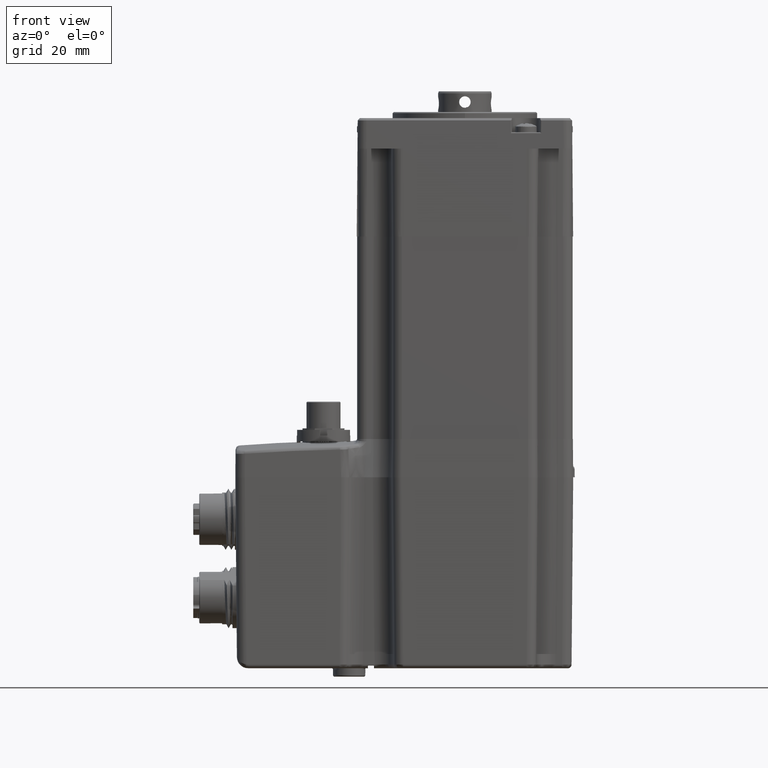
[diagram: clean part render]
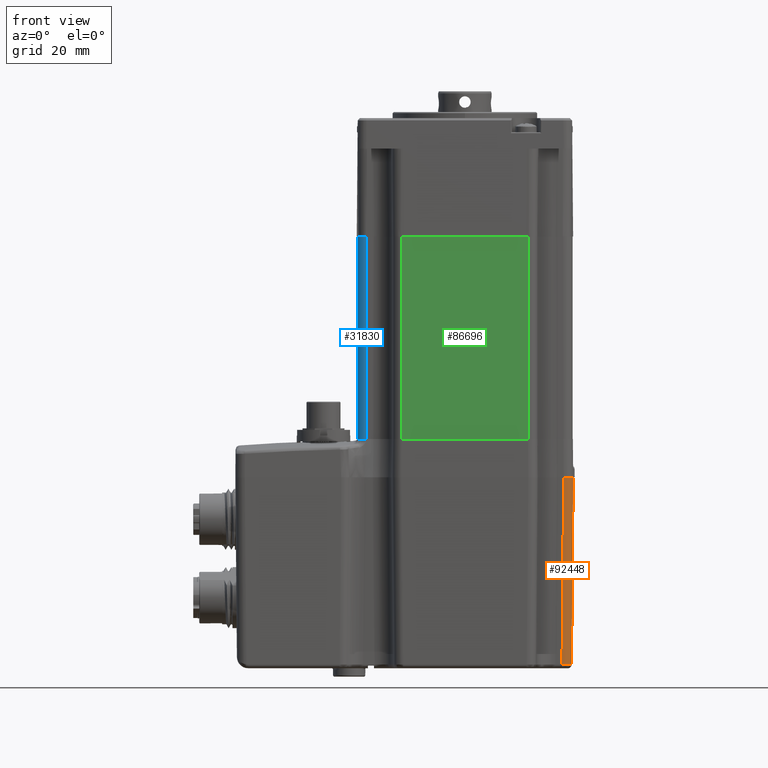
[diagram: same view with three faces highlighted in distinct colors, each labeled with its STEP entity id]
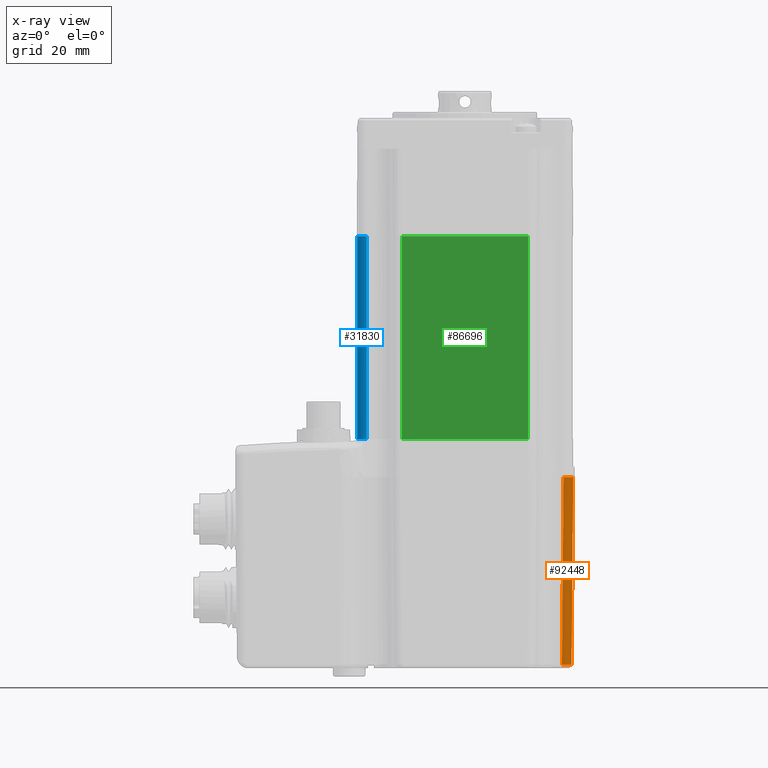
[diagram: x-ray of the same camera — body ghosted, the three highlighted faces saturated]
A machine part, front view with three faces highlighted in distinct colors.
The next image is the same camera in x-ray (body ghosted, the three faces saturated) — at least one of them is partly hidden behind the body in this view.
Their STEP definitions:

[orange] entity #92448 — the highlighted cylindrical surface (edge-blend (fillet) strip) has radius 2.5 mm, axis along (0.0087, -0.0087, 0.9999).
#407 = CARTESIAN_POINT ( 'NONE',  ( 25.40967119317840073, -18.65957600083883960, -102.0087265355430759 ) ) ;
#1239 = DIRECTION ( 'NONE',  ( 0.008726203243944236423, -0.008726203243944232954, 0.9999238504775704861 ) ) ;
#1584 = CARTESIAN_POINT ( 'NONE',  ( 28.33726867790758064, -16.58736387024715953, -53.00000000004468603 ) ) ;
#2067 = CARTESIAN_POINT ( 'NONE',  ( 27.17735084223524211, -17.92735084223524922, -102.0123407150203008 ) ) ;
#2901 = CARTESIAN_POINT ( 'NONE',  ( 26.70226811554211821, -18.40243356892836601, -102.0123407150203008 ) ) ;
#9394 = AXIS2_PLACEMENT_3D ( 'NONE', #77598, #1239, #19583 ) ;
#11824 = CARTESIAN_POINT ( 'NONE',  ( 25.40967119317840073, -18.65957600083883960, -102.0087265355430759 ) ) ;
#17449 =( BOUNDED_CURVE ( )  B_SPLINE_CURVE ( 3, ( #59078, #78629, #106449, #76988 ),
 .UNSPECIFIED., .F., .F. ) 
 B_SPLINE_CURVE_WITH_KNOTS ( ( 4, 4 ),
 ( 0.0000000000000000000, 0.7853600871865068500 ),
 .UNSPECIFIED. ) 
 CURVE ( )  GEOMETRIC_REPRESENTATION_ITEM ( )  RATIONAL_B_SPLINE_CURVE ( ( 1.000000000000000000, 0.9492578786076025787, 0.9492578786076025787, 1.000000000000000000 ) ) 
 REPRESENTATION_ITEM ( '' )  );
#18654 = EDGE_CURVE ( 'NONE', #95434, #51060, #67727, .T. ) ;
#19583 = DIRECTION ( 'NONE',  ( 0.9999619230641713097, 0.0000000000000000000, -0.008726535498373986718 ) ) ;
#21337 =( BOUNDED_CURVE ( )  B_SPLINE_CURVE ( 3, ( #11824, #70745, #2901, #2067 ),
 .UNSPECIFIED., .F., .F. ) 
 B_SPLINE_CURVE_WITH_KNOTS ( ( 4, 4 ),
 ( 5.497825219993077717, 6.283185307179586232 ),
 .UNSPECIFIED. ) 
 CURVE ( )  GEOMETRIC_REPRESENTATION_ITEM ( )  RATIONAL_B_SPLINE_CURVE ( ( 1.000000000000000000, 0.9492578786076022457, 0.9492578786076022457, 1.000000000000000000 ) ) 
 REPRESENTATION_ITEM ( '' )  );
#22205 = VERTEX_POINT ( 'NONE', #40571 ) ;
#24432 =( BOUNDED_CURVE ( )  B_SPLINE_CURVE ( 3, ( #69863, #51099, #41686, #1584 ),
 .UNSPECIFIED., .F., .F. ) 
 B_SPLINE_CURVE_WITH_KNOTS ( ( 4, 4 ),
 ( 2.356232566403286377, 3.926952740776304740 ),
 .UNSPECIFIED. ) 
 CURVE ( )  GEOMETRIC_REPRESENTATION_ITEM ( )  RATIONAL_B_SPLINE_CURVE ( ( 1.000000000000000000, 0.8047558030806112317, 0.8047558030806112317, 1.000000000000000000 ) ) 
 REPRESENTATION_ITEM ( '' )  );
#28418 = ORIENTED_EDGE ( 'NONE', *, *, #115299, .F. ) ;
#29793 = FACE_OUTER_BOUND ( 'NONE', #31847, .T. ) ;
#29981 = ORIENTED_EDGE ( 'NONE', *, *, #70837, .F. ) ;
#31847 = EDGE_LOOP ( 'NONE', ( #78620, #69877, #39814, #28418, #29981 ) ) ;
#35798 = CYLINDRICAL_SURFACE ( 'NONE', #9394, 2.500000000000000444 ) ;
#39814 = ORIENTED_EDGE ( 'NONE', *, *, #87401, .T. ) ;
#40010 = VERTEX_POINT ( 'NONE', #86533 ) ;
#40571 = CARTESIAN_POINT ( 'NONE',  ( 28.33726867790758064, -16.58736387024715953, -53.00000000004468603 ) ) ;
#41686 = CARTESIAN_POINT ( 'NONE',  ( 28.33726867790759130, -18.05179729719359827, -53.00000000000003553 ) ) ;
#51060 = VERTEX_POINT ( 'NONE', #87356 ) ;
#51099 = CARTESIAN_POINT ( 'NONE',  ( 27.30179729719359472, -19.08726867790758774, -53.00000000000003553 ) ) ;
#55691 = VERTEX_POINT ( 'NONE', #96313 ) ;
#59078 = CARTESIAN_POINT ( 'NONE',  ( 27.17735084223524211, -17.92735084223524922, -102.0123407150203008 ) ) ;
#66989 = CARTESIAN_POINT ( 'NONE',  ( 25.83755422955621128, -19.08745903721664661, -52.97818698377980695 ) ) ;
#67727 = LINE ( 'NONE', #66989, #87484 ) ;
#69863 = CARTESIAN_POINT ( 'NONE',  ( 25.83736387024715597, -19.08726867790758419, -53.00000000004469314 ) ) ;
#69877 = ORIENTED_EDGE ( 'NONE', *, *, #88518, .T. ) ;
#70745 = CARTESIAN_POINT ( 'NONE',  ( 26.08154474525004574, -18.65955553585465765, -102.0110715904551313 ) ) ;
#70837 = EDGE_CURVE ( 'NONE', #51060, #22205, #24432, .T. ) ;
#75773 = VECTOR ( 'NONE', #84130, 1000.000000000000114 ) ;
#76988 = CARTESIAN_POINT ( 'NONE',  ( 27.90957600083883960, -16.15967119317841494, -102.0087265355430759 ) ) ;
#77598 = CARTESIAN_POINT ( 'NONE',  ( 25.83755422955621128, -16.58755422955621839, -52.95637064503386426 ) ) ;
#78620 = ORIENTED_EDGE ( 'NONE', *, *, #18654, .F. ) ;
#78629 = CARTESIAN_POINT ( 'NONE',  ( 27.65243356892835536, -17.45226811554212532, -102.0123407150203008 ) ) ;
#83348 = LINE ( 'NONE', #114475, #75773 ) ;
#84130 = DIRECTION ( 'NONE',  ( -0.008726203243944238158, 0.008726203243944234689, -0.9999238504775704861 ) ) ;
#86533 = CARTESIAN_POINT ( 'NONE',  ( 27.90957600083883960, -16.15967119317841494, -102.0087265355430759 ) ) ;
#87356 = CARTESIAN_POINT ( 'NONE',  ( 25.83736387024715597, -19.08726867790758419, -53.00000000004469314 ) ) ;
#87401 = EDGE_CURVE ( 'NONE', #55691, #40010, #17449, .T. ) ;
#87484 = VECTOR ( 'NONE', #96409, 1000.000000000000114 ) ;
#88518 = EDGE_CURVE ( 'NONE', #95434, #55691, #21337, .T. ) ;
#92448 = ADVANCED_FACE ( 'NONE', ( #29793 ), #35798, .T. ) ;
#95434 = VERTEX_POINT ( 'NONE', #407 ) ;
#96313 = CARTESIAN_POINT ( 'NONE',  ( 27.17735084223524211, -17.92735084223524922, -102.0123407150203008 ) ) ;
#96409 = DIRECTION ( 'NONE',  ( 0.008726203243944236423, -0.008726203243944234689, 0.9999238504775704861 ) ) ;
#106449 = CARTESIAN_POINT ( 'NONE',  ( 27.90955553585464699, -16.83154474525005995, -102.0110715904551313 ) ) ;
#114475 = CARTESIAN_POINT ( 'NONE',  ( 28.33455217511031776, -16.58464736744990375, -53.31128038865480789 ) ) ;
#115299 = EDGE_CURVE ( 'NONE', #22205, #40010, #83348, .T. ) ;

[blue] entity #31830 — the highlighted cylindrical surface (edge-blend (fillet) strip) has radius 2.5 mm, axis along (0, 0, -1).
#980 = VECTOR ( 'NONE', #8201, 1000.000000000000000 ) ;
#1444 = EDGE_CURVE ( 'NONE', #94712, #4614, #26819, .T. ) ;
#1845 = EDGE_CURVE ( 'NONE', #4614, #16669, #8896, .T. ) ;
#2543 = CARTESIAN_POINT ( 'NONE',  ( -28.19999999999998863, -16.82724923474893686, -43.00000000000002132 ) ) ;
#4614 = VERTEX_POINT ( 'NONE', #78507 ) ;
#8201 = DIRECTION ( 'NONE',  ( 0.0000000000000000000, 0.0000000000000000000, -1.000000000000000000 ) ) ;
#8459 = DIRECTION ( 'NONE',  ( -1.000000000000000000, 0.0000000000000000000, 0.0000000000000000000 ) ) ;
#8896 = LINE ( 'NONE', #28648, #45566 ) ;
#11879 = CARTESIAN_POINT ( 'NONE',  ( -26.95904745092724042, -18.68446597088564687, -43.00000000000002132 ) ) ;
#16669 = VERTEX_POINT ( 'NONE', #68530 ) ;
#20671 = CARTESIAN_POINT ( 'NONE',  ( -28.19999999999998863, -16.50000000000000000, 9.999999999999973355 ) ) ;
#23730 = ORIENTED_EDGE ( 'NONE', *, *, #50278, .T. ) ;
#26819 = CIRCLE ( 'NONE', #36789, 2.500000000000002220 ) ;
#28648 = CARTESIAN_POINT ( 'NONE',  ( -25.69999999999998508, -19.00000000000000355, 9.999999999999973355 ) ) ;
#31556 = CARTESIAN_POINT ( 'NONE',  ( -28.19999999490953968, -16.47850279563876086, -42.99999999994842881 ) ) ;
#31754 = ORIENTED_EDGE ( 'NONE', *, *, #1444, .F. ) ;
#31830 = ADVANCED_FACE ( 'NONE', ( #54799 ), #86794, .T. ) ;
#31956 = CARTESIAN_POINT ( 'NONE',  ( -27.69916710599543919, -18.03636679993728720, -43.00000000000002132 ) ) ;
#32136 = CARTESIAN_POINT ( 'NONE',  ( -25.69999999999998508, -16.50000000000000000, 9.999999999999973355 ) ) ;
#36763 = VERTEX_POINT ( 'NONE', #31556 ) ;
#36789 = AXIS2_PLACEMENT_3D ( 'NONE', #32136, #62442, #90567 ) ;
#40500 = CARTESIAN_POINT ( 'NONE',  ( -27.88446597088562839, -17.75904745092724468, -43.00000000000001421 ) ) ;
#40972 = AXIS2_PLACEMENT_3D ( 'NONE', #63613, #74226, #8459 ) ;
#45566 = VECTOR ( 'NONE', #47826, 1000.000000000000000 ) ;
#47826 = DIRECTION ( 'NONE',  ( 0.0000000000000000000, 0.0000000000000000000, -1.000000000000000000 ) ) ;
#50278 = EDGE_CURVE ( 'NONE', #94712, #36763, #95618, .T. ) ;
#54799 = FACE_OUTER_BOUND ( 'NONE', #91366, .T. ) ;
#57361 = ORIENTED_EDGE ( 'NONE', *, *, #86655, .T. ) ;
#60984 = CARTESIAN_POINT ( 'NONE',  ( -26.35436971089818670, -18.93493169167079060, -43.00000000000002842 ) ) ;
#62442 = DIRECTION ( 'NONE',  ( 0.0000000000000000000, 0.0000000000000000000, 1.000000000000000000 ) ) ;
#63613 = CARTESIAN_POINT ( 'NONE',  ( -25.69999999999998508, -16.50000000000000000, 9.999999999999973355 ) ) ;
#68530 = CARTESIAN_POINT ( 'NONE',  ( -25.70000000000001350, -19.00000000000000355, -42.99999999999962341 ) ) ;
#70796 = CARTESIAN_POINT ( 'NONE',  ( -28.13493169167078278, -17.15436971089820517, -43.00000000000002842 ) ) ;
#74226 = DIRECTION ( 'NONE',  ( 0.0000000000000000000, 0.0000000000000000000, -1.000000000000000000 ) ) ;
#78507 = CARTESIAN_POINT ( 'NONE',  ( -25.69994558065858214, -18.99892608207358435, 9.999999999999971578 ) ) ;
#86655 = EDGE_CURVE ( 'NONE', #36763, #16669, #98674, .T. ) ;
#86794 = CYLINDRICAL_SURFACE ( 'NONE', #40972, 2.500000000000002220 ) ;
#89939 = CARTESIAN_POINT ( 'NONE',  ( -25.70000000000001350, -19.00000000000000355, -42.99999999999962341 ) ) ;
#90567 = DIRECTION ( 'NONE',  ( -1.000000000000000000, 0.0000000000000000000, 0.0000000000000000000 ) ) ;
#91366 = EDGE_LOOP ( 'NONE', ( #57361, #92103, #31754, #23730 ) ) ;
#92103 = ORIENTED_EDGE ( 'NONE', *, *, #1845, .F. ) ;
#94712 = VERTEX_POINT ( 'NONE', #20671 ) ;
#95618 = LINE ( 'NONE', #125126, #980 ) ;
#98674 = B_SPLINE_CURVE_WITH_KNOTS ( 'NONE', 3,
 ( #98970, #2543, #70796, #40500, #31956, #99817, #11879, #60984, #108782, #89939 ),
 .UNSPECIFIED., .F., .F.,
 ( 4, 2, 2, 2, 4 ),
 ( 0.0000000000000000000, 0.2500000000000000000, 0.5000000000000000000, 0.7500000000000000000, 1.000000000000000000 ),
 .UNSPECIFIED. ) ;
#98970 = CARTESIAN_POINT ( 'NONE',  ( -28.19999999490953968, -16.47850279563876086, -42.99999999994842881 ) ) ;
#99817 = CARTESIAN_POINT ( 'NONE',  ( -27.23636679993727228, -18.49916710599545411, -43.00000000000001421 ) ) ;
#108782 = CARTESIAN_POINT ( 'NONE',  ( -26.02724923474892904, -19.00000000000000355, -43.00000000000002132 ) ) ;
#125126 = CARTESIAN_POINT ( 'NONE',  ( -28.19999999999998863, -16.50000000000000000, 9.999999999999973355 ) ) ;

[green] entity #86696 — the highlighted planar face has unit normal (0, 1, 0).
#5574 = VERTEX_POINT ( 'NONE', #124797 ) ;
#6175 = VERTEX_POINT ( 'NONE', #65998 ) ;
#8537 = ORIENTED_EDGE ( 'NONE', *, *, #11893, .F. ) ;
#11893 = EDGE_CURVE ( 'NONE', #5574, #44364, #117386, .T. ) ;
#12310 = FACE_OUTER_BOUND ( 'NONE', #71008, .T. ) ;
#14249 = ORIENTED_EDGE ( 'NONE', *, *, #38980, .F. ) ;
#18153 = DIRECTION ( 'NONE',  ( 1.000000000000000000, 0.0000000000000000000, 0.0000000000000000000 ) ) ;
#20622 = ORIENTED_EDGE ( 'NONE', *, *, #104092, .T. ) ;
#22725 = LINE ( 'NONE', #59485, #123533 ) ;
#22819 = VECTOR ( 'NONE', #40387, 1000.000000000000000 ) ;
#23480 = VECTOR ( 'NONE', #18153, 1000.000000000000000 ) ;
#25878 = LINE ( 'NONE', #98003, #22819 ) ;
#29651 = LINE ( 'NONE', #83450, #73962 ) ;
#38018 = AXIS2_PLACEMENT_3D ( 'NONE', #73317, #120724, #42652 ) ;
#38186 = CARTESIAN_POINT ( 'NONE',  ( 16.50000000000001066, -28.20000000000000995, 9.999999999999973355 ) ) ;
#38980 = EDGE_CURVE ( 'NONE', #6175, #5574, #47987, .T. ) ;
#40347 = CARTESIAN_POINT ( 'NONE',  ( -16.49999999999998579, -28.20000000000000995, 9.999999999999973355 ) ) ;
#40387 = DIRECTION ( 'NONE',  ( 0.0000000000000000000, 0.0000000000000000000, -1.000000000000000000 ) ) ;
#41973 = DIRECTION ( 'NONE',  ( 0.0000000000000000000, 0.0000000000000000000, -1.000000000000000000 ) ) ;
#42652 = DIRECTION ( 'NONE',  ( 0.0000000000000000000, 0.0000000000000000000, 1.000000000000000000 ) ) ;
#44364 = VERTEX_POINT ( 'NONE', #38186 ) ;
#47987 = LINE ( 'NONE', #96261, #23480 ) ;
#49311 = VERTEX_POINT ( 'NONE', #108346 ) ;
#52482 = DIRECTION ( 'NONE',  ( 1.000000000000000000, 0.0000000000000000000, 0.0000000000000000000 ) ) ;
#59084 = LINE ( 'NONE', #81770, #98753 ) ;
#59485 = CARTESIAN_POINT ( 'NONE',  ( 16.50000000000001066, -28.20000000000000995, 9.999999999999973355 ) ) ;
#65998 = CARTESIAN_POINT ( 'NONE',  ( -15.99928214989797937, -28.20000000000000995, 9.999999999999973355 ) ) ;
#69479 = EDGE_CURVE ( 'NONE', #123910, #49311, #25878, .T. ) ;
#71008 = EDGE_LOOP ( 'NONE', ( #20622, #87251, #8537, #14249, #118414, #80344 ) ) ;
#73317 = CARTESIAN_POINT ( 'NONE',  ( -16.49999999999998579, -28.20000000000000995, 9.999999999999973355 ) ) ;
#73962 = VECTOR ( 'NONE', #93300, 1000.000000000000000 ) ;
#79758 = VERTEX_POINT ( 'NONE', #117446 ) ;
#80344 = ORIENTED_EDGE ( 'NONE', *, *, #69479, .T. ) ;
#81433 = CARTESIAN_POINT ( 'NONE',  ( -16.49999999999998579, -28.20000000000000995, 9.999999999999973355 ) ) ;
#81770 = CARTESIAN_POINT ( 'NONE',  ( -16.49999999999998579, -28.20000000000000995, -43.00000000000016342 ) ) ;
#83450 = CARTESIAN_POINT ( 'NONE',  ( -16.49999999999998579, -28.20000000000000995, 9.999999999999973355 ) ) ;
#86696 = ADVANCED_FACE ( 'NONE', ( #12310 ), #121979, .F. ) ;
#87251 = ORIENTED_EDGE ( 'NONE', *, *, #87582, .F. ) ;
#87582 = EDGE_CURVE ( 'NONE', #44364, #79758, #22725, .T. ) ;
#89620 = EDGE_CURVE ( 'NONE', #123910, #6175, #29651, .T. ) ;
#93300 = DIRECTION ( 'NONE',  ( 1.000000000000000000, 0.0000000000000000000, 0.0000000000000000000 ) ) ;
#94449 = VECTOR ( 'NONE', #52482, 1000.000000000000000 ) ;
#96261 = CARTESIAN_POINT ( 'NONE',  ( -16.49999999999998579, -28.20000000000000995, 9.999999999999973355 ) ) ;
#98003 = CARTESIAN_POINT ( 'NONE',  ( -16.49999999999998579, -28.20000000000000995, 9.999999999999973355 ) ) ;
#98753 = VECTOR ( 'NONE', #119854, 1000.000000000000000 ) ;
#104092 = EDGE_CURVE ( 'NONE', #49311, #79758, #59084, .T. ) ;
#108346 = CARTESIAN_POINT ( 'NONE',  ( -16.49999999999998579, -28.20000000000000995, -43.00000000000002132 ) ) ;
#117386 = LINE ( 'NONE', #81433, #94449 ) ;
#117446 = CARTESIAN_POINT ( 'NONE',  ( 16.50000000000001066, -28.20000000000000995, -43.00000000000002132 ) ) ;
#118414 = ORIENTED_EDGE ( 'NONE', *, *, #89620, .F. ) ;
#119854 = DIRECTION ( 'NONE',  ( 1.000000000000000000, 0.0000000000000000000, 0.0000000000000000000 ) ) ;
#120724 = DIRECTION ( 'NONE',  ( 0.0000000000000000000, 1.000000000000000000, 0.0000000000000000000 ) ) ;
#121979 = PLANE ( 'NONE',  #38018 ) ;
#123533 = VECTOR ( 'NONE', #41973, 1000.000000000000000 ) ;
#123910 = VERTEX_POINT ( 'NONE', #40347 ) ;
#124797 = CARTESIAN_POINT ( 'NONE',  ( 15.99928214989866682, -28.20000000000000995, 9.999999999999973355 ) ) ;